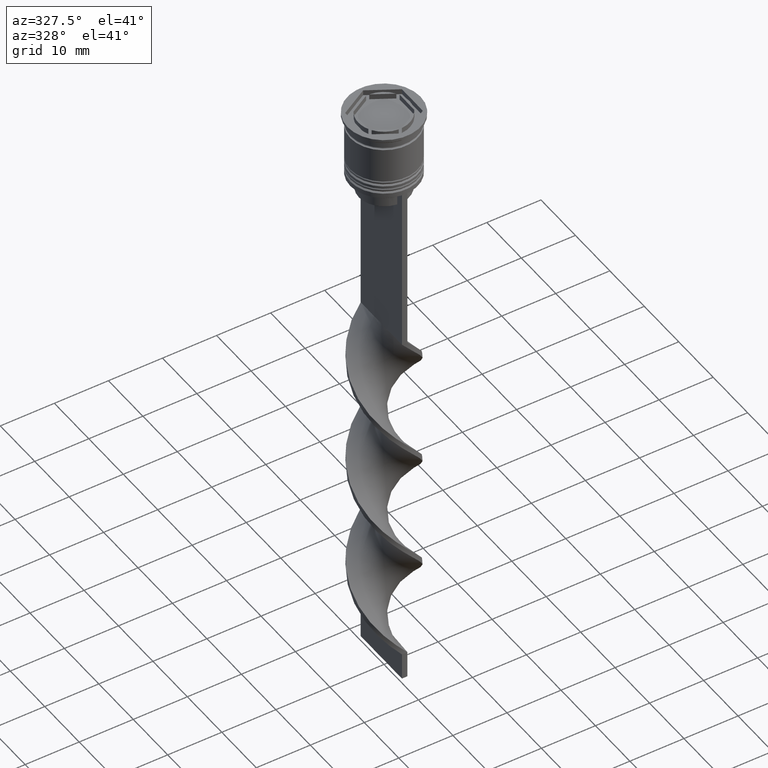
[diagram: clean part render]
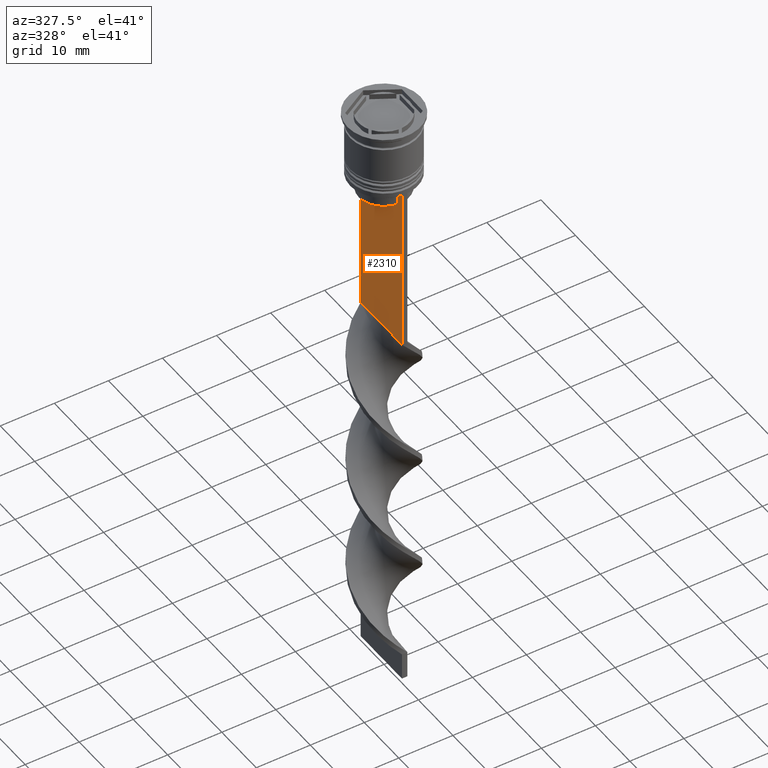
[diagram: same view with one face highlighted and labeled with its STEP entity id]
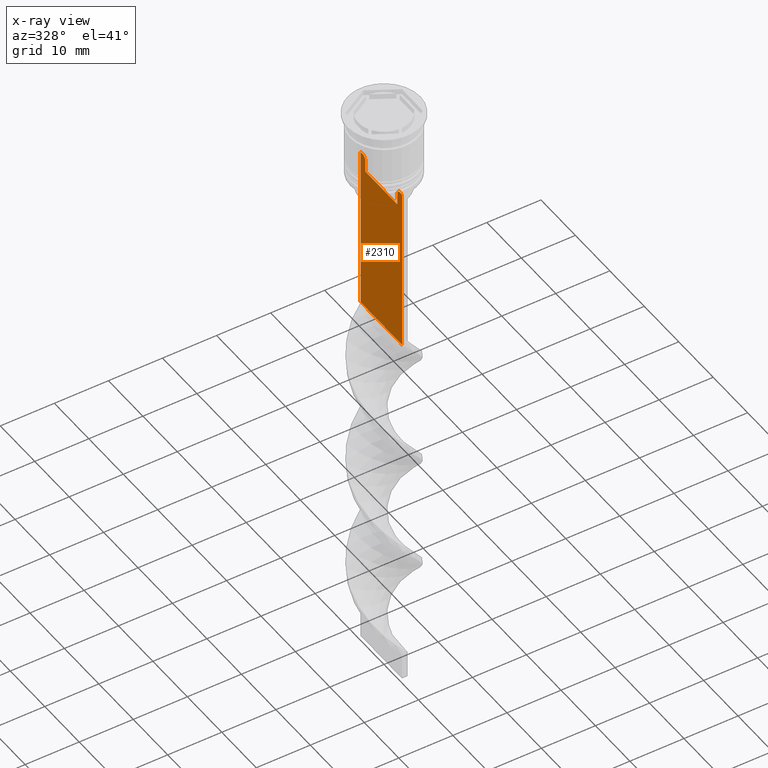
[diagram: x-ray of the same camera — body ghosted, the highlighted face saturated]
A machine part, auxiliary view. The second image highlights one B-rep face of the part: STEP entity #2310.
The next image is the same camera in x-ray: the body ghosted, the highlighted face saturated — about 0% of this face is hidden behind the body in this view.
In plain terms, the highlighted planar face has unit normal (-1, 0, 0).
Its self-contained STEP definition (entity closure, byte-faithful):
#47 = VECTOR ( 'NONE', #2196, 1000.000000000000000 ) ;
#75 = CARTESIAN_POINT ( 'NONE',  ( -0.4999999999999997780, -6.000000000000000000, -43.50000000000000000 ) ) ;
#145 = CARTESIAN_POINT ( 'NONE',  ( -0.4999999999999997780, 6.000000000000000888, -43.50000000000000000 ) ) ;
#236 = ORIENTED_EDGE ( 'NONE', *, *, #2557, .F. ) ;
#308 = CARTESIAN_POINT ( 'NONE',  ( -0.4999999999999997780, -6.000000000000000000, -12.50000000000000000 ) ) ;
#368 = DIRECTION ( 'NONE',  ( -1.000000000000000000, 0.000000000000000000, 0.000000000000000000 ) ) ;
#423 = ORIENTED_EDGE ( 'NONE', *, *, #3212, .F. ) ;
#472 = VERTEX_POINT ( 'NONE', #1525 ) ;
#481 = EDGE_CURVE ( 'NONE', #1955, #3088, #607, .T. ) ;
#523 = CARTESIAN_POINT ( 'NONE',  ( -0.4999999999999997780, 5.125670687822231564, -12.50000000000000000 ) ) ;
#536 = CARTESIAN_POINT ( 'NONE',  ( -0.4999999999999997780, 6.000000000000000888, -0.4584054212077061097 ) ) ;
#569 = CARTESIAN_POINT ( 'NONE',  ( -0.4999999999999997780, 6.000000000000001776, -12.50000000000000000 ) ) ;
#607 = B_SPLINE_CURVE_WITH_KNOTS ( 'NONE', 3,
 ( #2332, #1818, #3209, #2694 ),
 .UNSPECIFIED., .F., .F.,
 ( 4, 4 ),
 ( 0.02203698174624551046, 0.02275222543365894301 ),
 .UNSPECIFIED. ) ;
#664 = ORIENTED_EDGE ( 'NONE', *, *, #1859, .F. ) ;
#671 = LINE ( 'NONE', #877, #3349 ) ;
#691 = ORIENTED_EDGE ( 'NONE', *, *, #1570, .F. ) ;
#735 = VECTOR ( 'NONE', #1658, 1000.000000000000000 ) ;
#821 = LINE ( 'NONE', #1858, #47 ) ;
#842 = EDGE_CURVE ( 'NONE', #2596, #472, #2465, .T. ) ;
#876 = CARTESIAN_POINT ( 'NONE',  ( -0.4999999999999997780, -6.000000000000000000, -12.50000000000000000 ) ) ;
#877 = CARTESIAN_POINT ( 'NONE',  ( -0.4999999999999997780, 4.623040125285526436, 0.000000000000000000 ) ) ;
#922 = ORIENTED_EDGE ( 'NONE', *, *, #3467, .F. ) ;
#1064 = CARTESIAN_POINT ( 'NONE',  ( -0.4999999999999997780, -6.000000000000000000, -0.4584054212077061097 ) ) ;
#1197 = DIRECTION ( 'NONE',  ( -0.000000000000000000, -0.000000000000000000, 1.000000000000000000 ) ) ;
#1200 = VERTEX_POINT ( 'NONE', #75 ) ;
#1209 = VERTEX_POINT ( 'NONE', #876 ) ;
#1211 = ORIENTED_EDGE ( 'NONE', *, *, #1661, .F. ) ;
#1232 = CARTESIAN_POINT ( 'NONE',  ( -0.4999999999999997780, -5.125670687822231564, -12.50000000000000000 ) ) ;
#1289 = VECTOR ( 'NONE', #3474, 1000.000000000000000 ) ;
#1296 = CARTESIAN_POINT ( 'NONE',  ( -0.4999999999999997780, -6.000000000000000000, -43.50000000000000000 ) ) ;
#1525 = CARTESIAN_POINT ( 'NONE',  ( -0.4999999999999997780, -4.623040125285526436, -15.50000000000000000 ) ) ;
#1570 = EDGE_CURVE ( 'NONE', #1200, #2014, #3492, .T. ) ;
#1658 = DIRECTION ( 'NONE',  ( 0.000000000000000000, -1.000000000000000000, 0.000000000000000000 ) ) ;
#1661 = EDGE_CURVE ( 'NONE', #3088, #1209, #821, .T. ) ;
#1679 = EDGE_CURVE ( 'NONE', #1702, #2914, #2182, .T. ) ;
#1702 = VERTEX_POINT ( 'NONE', #569 ) ;
#1818 = CARTESIAN_POINT ( 'NONE',  ( -0.4999999999999997780, -4.790630799407576745, -12.83338098686239093 ) ) ;
#1858 = CARTESIAN_POINT ( 'NONE',  ( -0.4999999999999997780, -6.000000000000000000, -12.50000000000000000 ) ) ;
#1859 = EDGE_CURVE ( 'NONE', #2791, #2596, #671, .T. ) ;
#1868 = VECTOR ( 'NONE', #1965, 1000.000000000000000 ) ;
#1869 = VECTOR ( 'NONE', #2167, 1000.000000000000000 ) ;
#1955 = VERTEX_POINT ( 'NONE', #2521 ) ;
#1965 = DIRECTION ( 'NONE',  ( 0.000000000000000000, 0.000000000000000000, -1.000000000000000000 ) ) ;
#1969 = DIRECTION ( 'NONE',  ( 0.000000000000000000, 0.000000000000000000, -1.000000000000000000 ) ) ;
#2014 = VERTEX_POINT ( 'NONE', #145 ) ;
#2040 = VECTOR ( 'NONE', #2263, 1000.000000000000000 ) ;
#2049 = CARTESIAN_POINT ( 'NONE',  ( -0.4999999999999997780, 4.623040125285526436, -15.50000000000000000 ) ) ;
#2167 = DIRECTION ( 'NONE',  ( 0.000000000000000000, -1.000000000000000000, 0.000000000000000000 ) ) ;
#2182 = LINE ( 'NONE', #308, #1869 ) ;
#2196 = DIRECTION ( 'NONE',  ( 0.000000000000000000, -1.000000000000000000, 0.000000000000000000 ) ) ;
#2217 = ORIENTED_EDGE ( 'NONE', *, *, #3274, .T. ) ;
#2263 = DIRECTION ( 'NONE',  ( 0.000000000000000000, 0.000000000000000000, -1.000000000000000000 ) ) ;
#2310 = ADVANCED_FACE ( 'NONE', ( #2769 ), #3078, .T. ) ;
#2320 = AXIS2_PLACEMENT_3D ( 'NONE', #2819, #368, #2895 ) ;
#2329 = ORIENTED_EDGE ( 'NONE', *, *, #1679, .F. ) ;
#2332 = CARTESIAN_POINT ( 'NONE',  ( -0.4999999999999997780, -4.623040125285526436, -13.00000000000000178 ) ) ;
#2360 = CARTESIAN_POINT ( 'NONE',  ( -0.4999999999999997780, 4.790630915080666519, -12.83338087185995313 ) ) ;
#2369 = B_SPLINE_CURVE_WITH_KNOTS ( 'NONE', 3,
 ( #523, #2634, #2360, #3426 ),
 .UNSPECIFIED., .F., .F.,
 ( 4, 4 ),
 ( 0.008759809102772707357, 0.009468778395565351919 ),
 .UNSPECIFIED. ) ;
#2407 = CARTESIAN_POINT ( 'NONE',  ( -0.4999999999999997780, 4.623040125285526436, -13.00000000000000178 ) ) ;
#2465 = LINE ( 'NONE', #3288, #735 ) ;
#2521 = CARTESIAN_POINT ( 'NONE',  ( -0.4999999999999997780, -4.623040125285526436, -13.00000000000000178 ) ) ;
#2539 = CARTESIAN_POINT ( 'NONE',  ( -0.4999999999999997780, 5.125670687822231564, -12.50000000000000000 ) ) ;
#2557 = EDGE_CURVE ( 'NONE', #472, #1955, #2560, .T. ) ;
#2560 = LINE ( 'NONE', #3166, #2901 ) ;
#2594 = LINE ( 'NONE', #536, #2040 ) ;
#2596 = VERTEX_POINT ( 'NONE', #2049 ) ;
#2634 = CARTESIAN_POINT ( 'NONE',  ( -0.4999999999999997780, 4.958169823806762189, -12.66670956677067750 ) ) ;
#2694 = CARTESIAN_POINT ( 'NONE',  ( -0.4999999999999997780, -5.125670687822231564, -12.50000000000000000 ) ) ;
#2769 = FACE_OUTER_BOUND ( 'NONE', #3303, .T. ) ;
#2791 = VERTEX_POINT ( 'NONE', #2407 ) ;
#2819 = CARTESIAN_POINT ( 'NONE',  ( -0.4999999999999997780, -6.000000000000000000, -0.4584054212077061097 ) ) ;
#2867 = ORIENTED_EDGE ( 'NONE', *, *, #481, .F. ) ;
#2895 = DIRECTION ( 'NONE',  ( 0.000000000000000000, 0.000000000000000000, 1.000000000000000000 ) ) ;
#2901 = VECTOR ( 'NONE', #1197, 1000.000000000000000 ) ;
#2914 = VERTEX_POINT ( 'NONE', #2539 ) ;
#3077 = ORIENTED_EDGE ( 'NONE', *, *, #842, .F. ) ;
#3078 = PLANE ( 'NONE',  #2320 ) ;
#3088 = VERTEX_POINT ( 'NONE', #1232 ) ;
#3166 = CARTESIAN_POINT ( 'NONE',  ( -0.4999999999999997780, -4.623040125285526436, 0.000000000000000000 ) ) ;
#3209 = CARTESIAN_POINT ( 'NONE',  ( -0.4999999999999997780, -4.958169719475986170, -12.66670967060858111 ) ) ;
#3212 = EDGE_CURVE ( 'NONE', #2914, #2791, #2369, .T. ) ;
#3274 = EDGE_CURVE ( 'NONE', #1702, #2014, #2594, .T. ) ;
#3288 = CARTESIAN_POINT ( 'NONE',  ( -0.4999999999999997780, 4.650000000000001243, -15.50000000000000000 ) ) ;
#3303 = EDGE_LOOP ( 'NONE', ( #423, #2329, #2217, #691, #922, #1211, #2867, #236, #3077, #664 ) ) ;
#3349 = VECTOR ( 'NONE', #1969, 1000.000000000000000 ) ;
#3426 = CARTESIAN_POINT ( 'NONE',  ( -0.4999999999999997780, 4.623040125285526436, -13.00000000000000178 ) ) ;
#3467 = EDGE_CURVE ( 'NONE', #1209, #1200, #3496, .T. ) ;
#3474 = DIRECTION ( 'NONE',  ( 0.000000000000000000, 1.000000000000000000, 0.000000000000000000 ) ) ;
#3492 = LINE ( 'NONE', #1296, #1289 ) ;
#3496 = LINE ( 'NONE', #1064, #1868 ) ;